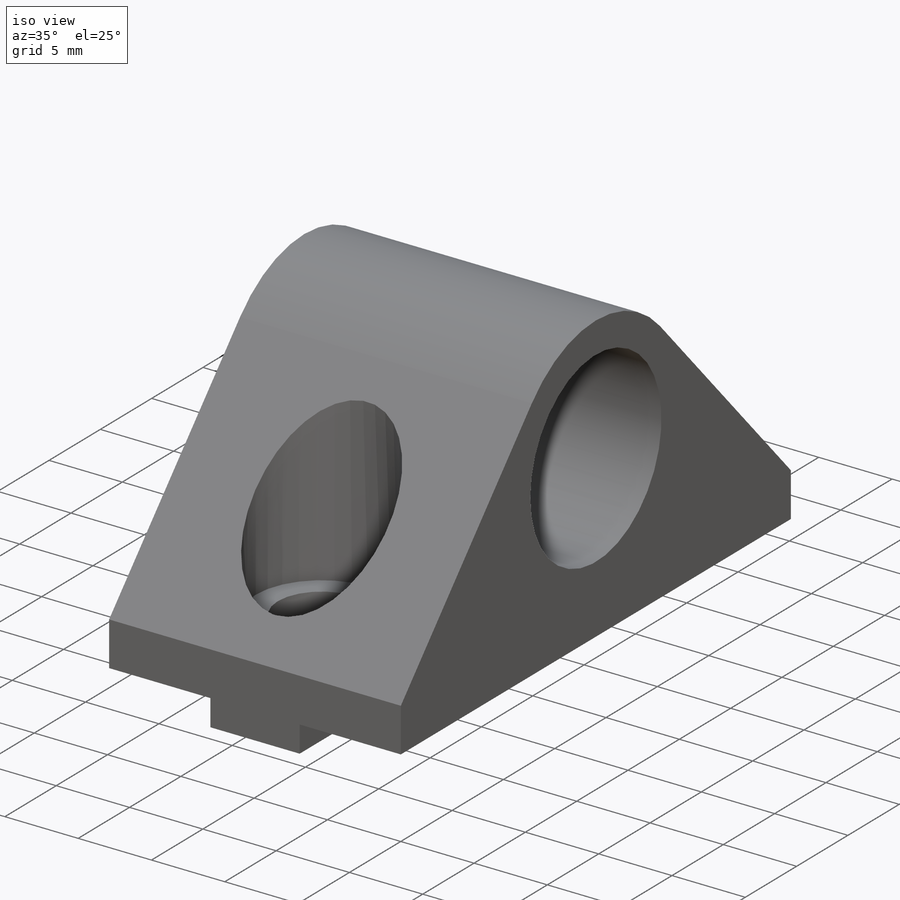
[diagram: iso view]
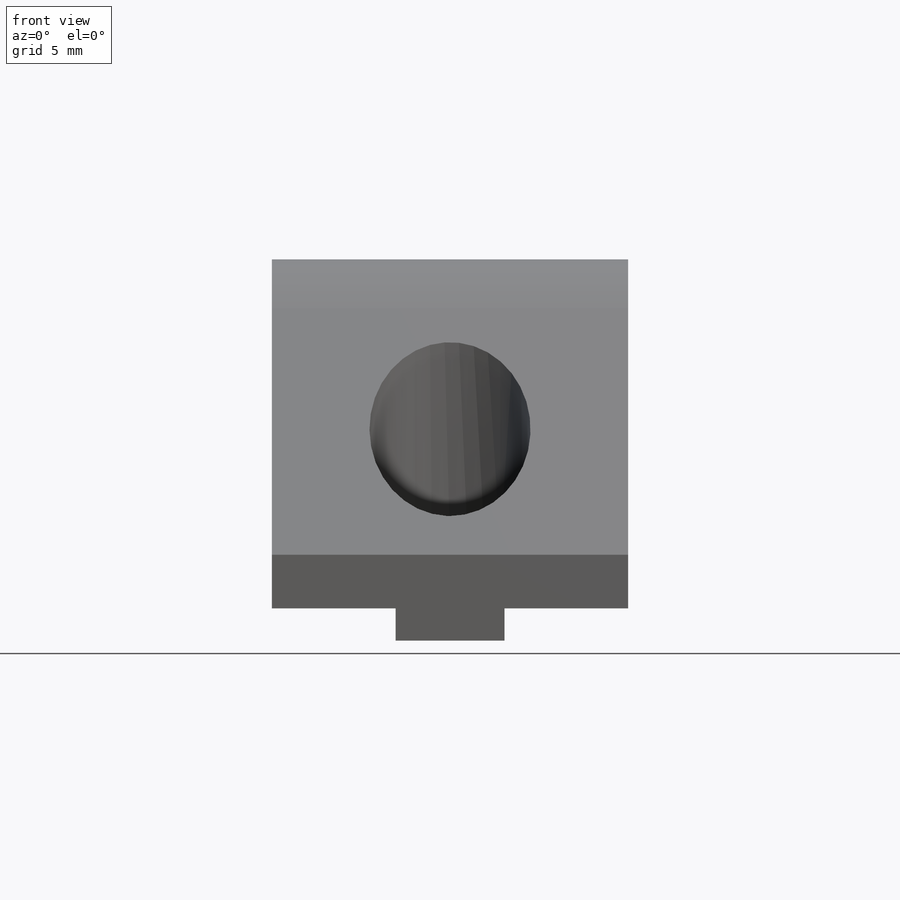
[diagram: front view]
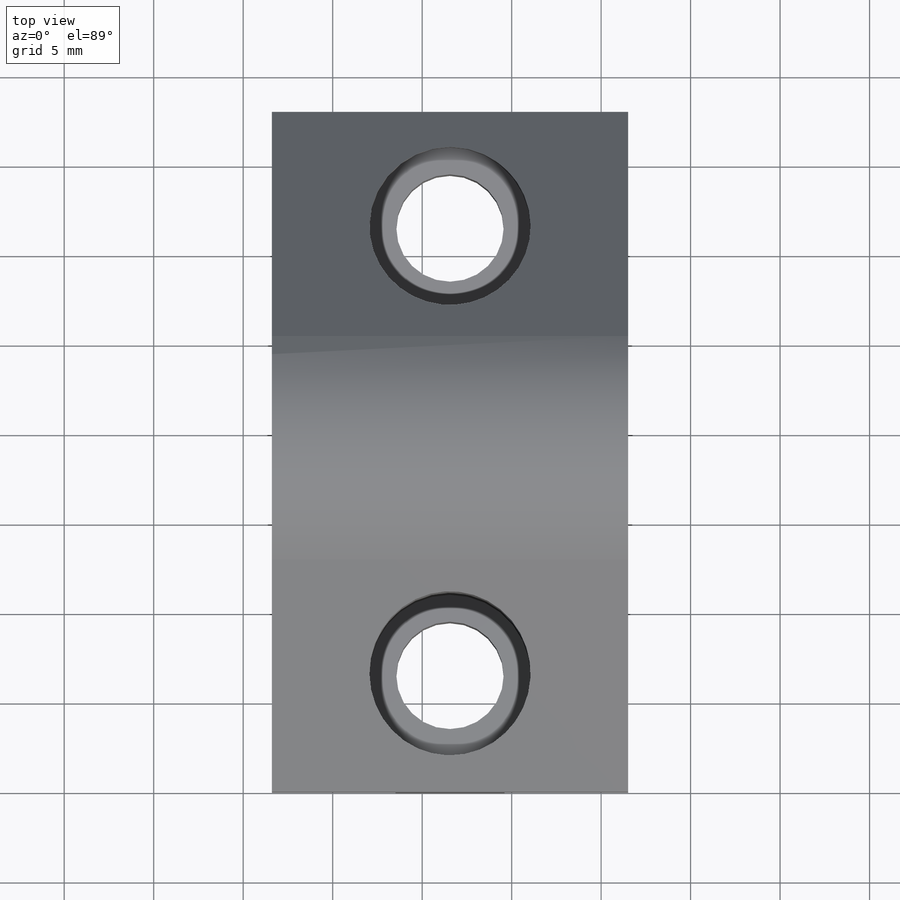
[diagram: top view]
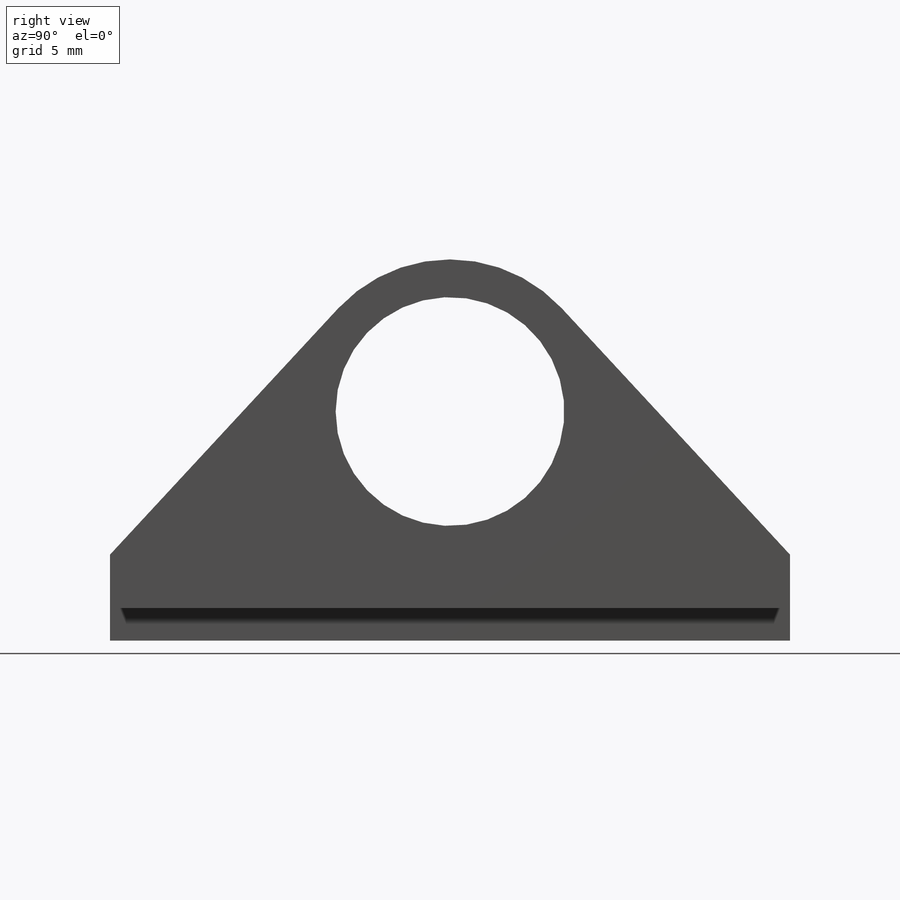
[diagram: right view]
SOLIDWORKS PART (.sldprt)
format: sldprt  version: not decoded by parser v0  size: 202,752 bytes
history: native  units: mm
features: sketch x3, extrude x2, plane x2, material x1, cut_revolve x1, mirror x1 (+12 scaffold rows collapsed)
feature tree (22):
  scaffold x12  (default folders/planes/origin — collapsed)
  material  "ABS"
  sketch  "Sketch1"  dims[c1.D1=3.0mm c1.D2=1.5mm c1.D3=19.9mm c1.D4=6.91mm c2.D2=~6.088675mm c3.D2=~3.058887deg c4.D2=1.8mm]
  extrude  "Boss-Extrude1"  Depth=38mm
  sketch  "Sketch2"  dims[D2=8.5mm D3=12.78mm D1=8.0mm]
  extrude  "Boss-Extrude2"  [1 undecoded]
  plane  "Plane1"
  sketch  "Sketch3"  dims[c1.D1=4.8mm c1.D2=3.0mm c1.D3=5.0mm c1.D4=6.5mm c2.D3=3.5014mm c2.D4=6.5mm]
  cut_revolve  "Cut-Revolve1"  Angle=360deg
  plane  "Plane2"
  mirror  "Mirror1"
decode coverage: 5 of 7 modeling features carry decoded parameters
note: ~ marks probable driven/reference dimensions
note: 1 parameter value undecoded
note: suppression state not decoded; provenance and decode notes live in map.json
